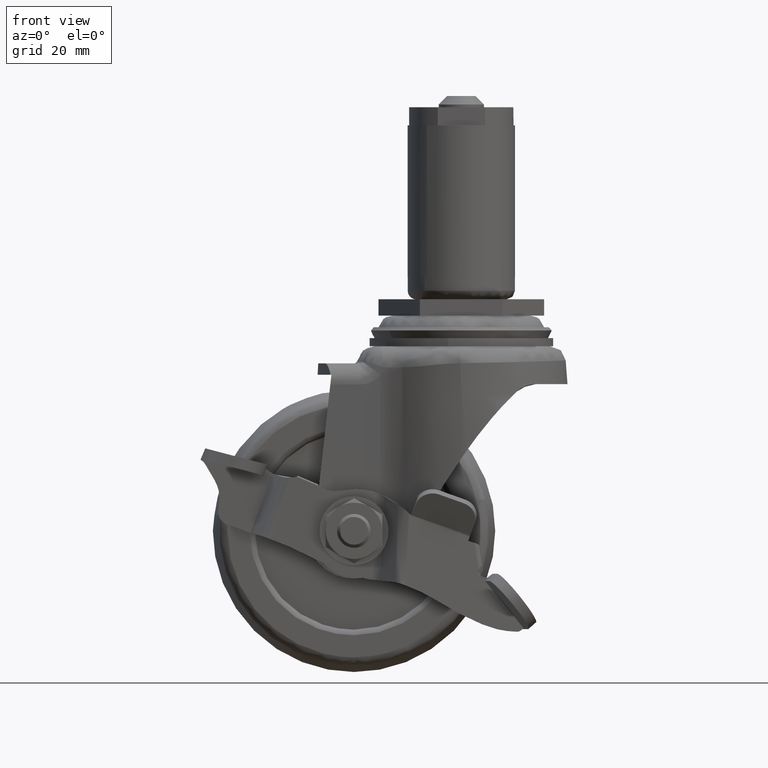
[diagram: clean part render]
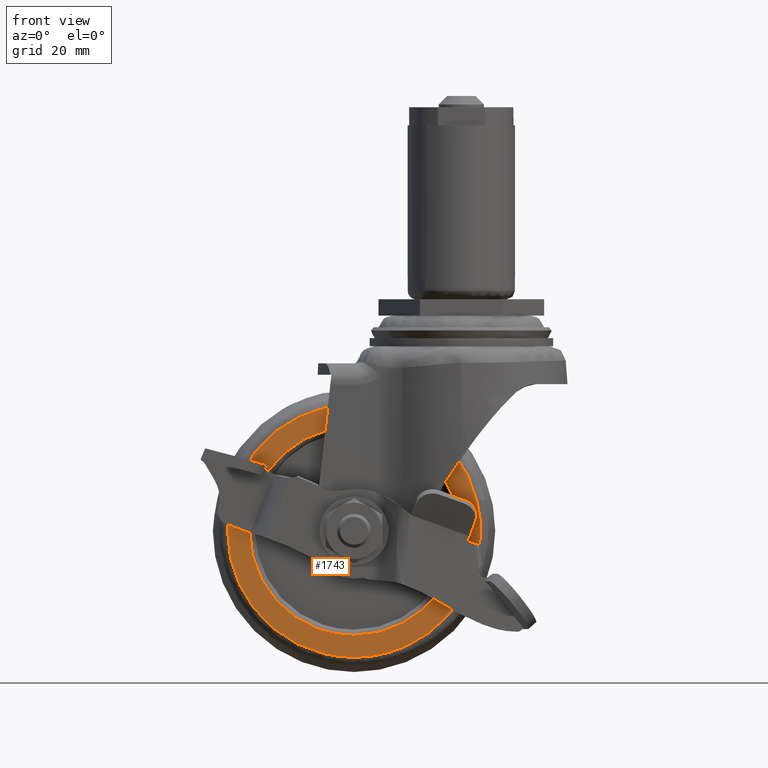
[diagram: same view with one face highlighted and labeled with its STEP entity id]
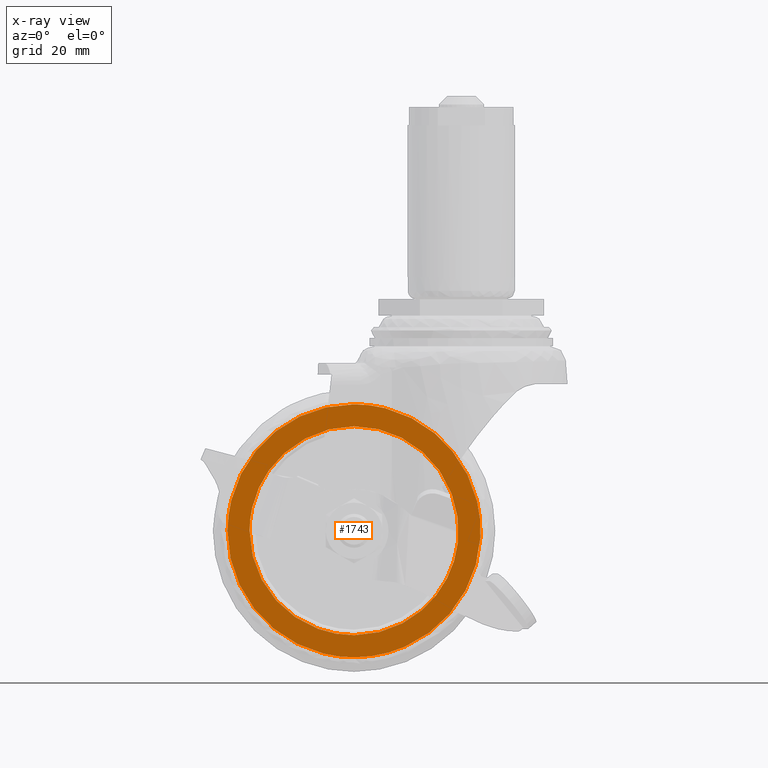
[diagram: x-ray of the same camera — body ghosted, the highlighted face saturated]
A machine part, front view. The second image highlights one B-rep face of the part: STEP entity #1743.
The next image is the same camera in x-ray: the body ghosted, the highlighted face saturated — about 0% of this face is hidden behind the body in this view.
In plain terms, the highlighted face is a freeform B-spline surface patch.
Its self-contained STEP definition (entity closure, byte-faithful):
#717=CARTESIAN_POINT('',(-0.623932356935121,-10.000099000000040,-43.136486265343329));
#718=VERTEX_POINT('',#717);
#729=CARTESIAN_POINT('',(-19.0,-10.000099000000080,-22.500620000000200));
#730=VERTEX_POINT('',#729);
#731=CARTESIAN_POINT('',(-0.623932356935121,-10.000099000000040,-43.136486265343329));
#732=CARTESIAN_POINT('',(-0.473625967720490,-10.000099000000050,-41.845184912027463));
#733=CARTESIAN_POINT('',(-0.451205850647510,-10.000099000000070,-39.639340943658247));
#734=CARTESIAN_POINT('',(-0.953977491376934,-10.000099000000050,-36.667383223980707));
#735=CARTESIAN_POINT('',(-1.836686077629021,-10.000099000000059,-33.872026697312897));
#736=CARTESIAN_POINT('',(-3.132398899456623,-10.000099000000050,-31.324981564832498));
#737=CARTESIAN_POINT('',(-4.703004672492043,-10.000099000000111,-29.195055202131300));
#738=CARTESIAN_POINT('',(-6.561650105880212,-10.000099000000001,-27.201979014527900));
#739=CARTESIAN_POINT('',(-8.714832284515003,-10.000099000000329,-25.512352672260700));
#740=CARTESIAN_POINT('',(-11.654089057477840,-10.000099000000400,-23.929059768822640));
#741=CARTESIAN_POINT('',(-14.937584381427801,-10.000098999999720,-22.806577538904079));
#742=CARTESIAN_POINT('',(-17.578090413905489,-10.000099000000279,-22.500348317698919));
#743=CARTESIAN_POINT('',(-19.0,-10.000099000000080,-22.500620000000200));
#744=B_SPLINE_CURVE_WITH_KNOTS('',3,(#731,#732,#733,#734,#735,#736,#737,#738,#739,#740,#741,#742,#743),.UNSPECIFIED.,.F.,.U.,(4,1,1,1,1,1,1,1,1,1,4),(0.000000127039048,3.900016594334417,6.581317058058673,9.018852017645038,12.675157377979760,15.112698776897560,16.940782202150469,20.840814428644389,23.278360680402159,26.934655014216421,31.200316178846890),.UNSPECIFIED.);
#745=EDGE_CURVE('',#718,#730,#744,.T.);
#747=CARTESIAN_POINT('',(-37.499800975563957,-10.000099000000040,-41.000421000000102));
#748=VERTEX_POINT('',#747);
#749=CARTESIAN_POINT('',(-19.0,-10.000099000000080,-22.500620000000200));
#750=CARTESIAN_POINT('',(-20.286487089412610,-10.000099000000080,-22.500455033797770));
#751=CARTESIAN_POINT('',(-22.935113350953412,-10.000099000000080,-22.777883221564728));
#752=CARTESIAN_POINT('',(-26.332972275275971,-10.000099000000120,-23.900370759428569));
#753=CARTESIAN_POINT('',(-28.859015571871002,-10.000099000000050,-25.290979374627039));
#754=CARTESIAN_POINT('',(-30.946848484947669,-10.000099000000070,-26.799975466509188));
#755=CARTESIAN_POINT('',(-32.817181444237129,-10.000099000000070,-28.580680965316059));
#756=CARTESIAN_POINT('',(-34.747001691415591,-10.000099000000050,-31.116995190415320));
#757=CARTESIAN_POINT('',(-36.077745265764072,-10.000099000000070,-33.681853347634330));
#758=CARTESIAN_POINT('',(-37.195533027599602,-10.000099000000040,-37.065526854941552));
#759=CARTESIAN_POINT('',(-37.500296715781808,-10.000099000000059,-39.411167339179592));
#760=CARTESIAN_POINT('',(-37.499800975563957,-10.000099000000040,-41.000421000000102));
#761=B_SPLINE_CURVE_WITH_KNOTS('',3,(#749,#750,#751,#752,#753,#754,#755,#756,#757,#758,#759,#760),.UNSPECIFIED.,.F.,.U.,(4,1,1,1,1,1,1,1,1,4),(-0.000002103098453,3.859473635764001,7.945986541703654,10.670342082961721,12.486573953543081,15.664919835630030,18.389261352210969,22.021728511979109,24.292020391923629,29.059600697694069),.UNSPECIFIED.);
#762=EDGE_CURVE('',#730,#748,#761,.T.);
#850=CARTESIAN_POINT('',(-19.0,-10.000099000000080,-59.500222000000001));
#851=VERTEX_POINT('',#850);
#852=CARTESIAN_POINT('',(-37.499800975563957,-10.000099000000040,-41.000421000000102));
#853=CARTESIAN_POINT('',(-37.499859818732098,-10.000099000000059,-41.984203420057440));
#854=CARTESIAN_POINT('',(-37.348522895525882,-10.000099000000020,-43.876065749596087));
#855=CARTESIAN_POINT('',(-36.594785290363923,-10.000099000000059,-47.050738967139559));
#856=CARTESIAN_POINT('',(-35.360705307941473,-10.000099000000040,-49.834988608092743));
#857=CARTESIAN_POINT('',(-33.844009914569980,-10.000099000000191,-52.104316959599537));
#858=CARTESIAN_POINT('',(-32.380635131884510,-10.000098999999960,-53.843564472761848));
#859=CARTESIAN_POINT('',(-30.490474792422891,-10.000099000000120,-55.599515272653903));
#860=CARTESIAN_POINT('',(-27.838033178446640,-10.000098999999921,-57.371953336615007));
#861=CARTESIAN_POINT('',(-25.112294286296539,-10.000099000000100,-58.540318597182853));
#862=CARTESIAN_POINT('',(-22.102631930555422,-10.000099000000150,-59.313784732025937));
#863=CARTESIAN_POINT('',(-20.210816489602990,-10.000099000000009,-59.500372958079431));
#864=CARTESIAN_POINT('',(-19.0,-10.000099000000080,-59.500222000000001));
#865=B_SPLINE_CURVE_WITH_KNOTS('',3,(#852,#853,#854,#855,#856,#857,#858,#859,#860,#861,#862,#863,#864),.UNSPECIFIED.,.F.,.U.,(4,1,1,1,1,1,1,1,1,1,4),(-0.000002103059220,2.951360502227789,5.675701497286454,9.762223225059596,12.032517326834640,13.848732236193630,16.573028803346219,19.751439429609409,23.383902094373671,25.427168768281661,29.059600697693821),.UNSPECIFIED.);
#866=EDGE_CURVE('',#748,#851,#865,.T.);
#868=CARTESIAN_POINT('',(-19.0,-10.000099000000080,-59.500222000000001));
#869=CARTESIAN_POINT('',(-17.387624412746881,-10.000099000000080,-59.500786397299990));
#870=CARTESIAN_POINT('',(-14.794216060202480,-10.000099000000080,-59.158826689923849));
#871=CARTESIAN_POINT('',(-11.347995952116261,-10.000099000000111,-57.935743693947963));
#872=CARTESIAN_POINT('',(-8.947799419801207,-10.000099000000020,-56.606131559274743));
#873=CARTESIAN_POINT('',(-6.876483207180400,-10.000099000000031,-55.038093633841513));
#874=CARTESIAN_POINT('',(-5.267034531030157,-10.000099000000350,-53.468044755259982));
#875=CARTESIAN_POINT('',(-3.648159985261218,-10.000098999999789,-51.436204627286124));
#876=CARTESIAN_POINT('',(-2.223810223220511,-10.000099000000130,-49.009007344620493));
#877=CARTESIAN_POINT('',(-1.133024246114303,-10.000098999999910,-46.111904003661863));
#878=CARTESIAN_POINT('',(-0.737184497366433,-10.000099000000221,-44.111329559838524));
#879=CARTESIAN_POINT('',(-0.623932356935121,-10.000099000000040,-43.136486265343329));
#880=B_SPLINE_CURVE_WITH_KNOTS('',3,(#868,#869,#870,#871,#872,#873,#874,#875,#876,#877,#878,#879),.UNSPECIFIED.,.F.,.U.,(4,1,1,1,1,1,1,1,1,4),(0.000000035726465,4.836945590582868,7.781203698962333,10.935770215926279,13.038770960113160,15.562344718528770,17.665400633711190,20.819954531322381,23.974515162277520,26.918724086692858),.UNSPECIFIED.);
#881=EDGE_CURVE('',#851,#718,#880,.T.);
#904=CARTESIAN_POINT('',(-9.983512796648736,-10.000099000000040,-61.509660136653522));
#905=VERTEX_POINT('',#904);
#906=CARTESIAN_POINT('',(2.768149373497545,-10.000099000000031,-35.701967559477751));
#907=VERTEX_POINT('',#906);
#908=CARTESIAN_POINT('',(-9.983512796648736,-10.000099000000040,-61.509660136653522));
#909=CARTESIAN_POINT('',(-8.492867647836357,-10.000099000000059,-60.854636782653031));
#910=CARTESIAN_POINT('',(-6.435917305187584,-10.000099000000031,-59.667622510890212));
#911=CARTESIAN_POINT('',(-3.840182418162388,-10.000099000000089,-57.562880568947342));
#912=CARTESIAN_POINT('',(-1.556379639551520,-10.000099000000020,-55.231786935892281));
#913=CARTESIAN_POINT('',(0.494995280918186,-10.000099000000130,-52.271941314070830));
#914=CARTESIAN_POINT('',(2.065607742356050,-10.000098999999921,-48.861998925691680));
#915=CARTESIAN_POINT('',(3.096925225631080,-10.000099000000480,-45.335594038116547));
#916=CARTESIAN_POINT('',(3.591369378588961,-10.000098999999720,-40.863745915052043));
#917=CARTESIAN_POINT('',(3.211443816426886,-10.000099000000089,-37.521179268112327));
#918=CARTESIAN_POINT('',(2.768149373497545,-10.000099000000031,-35.701967559477751));
#919=B_SPLINE_CURVE_WITH_KNOTS('',3,(#908,#909,#910,#911,#912,#913,#914,#915,#916,#917,#918),.UNSPECIFIED.,.F.,.U.,(4,1,1,1,1,1,1,1,4),(0.000000011241809,4.884570132202171,7.082653421911829,10.013423488194130,14.653780910604199,17.828755640274188,21.247961007739470,25.644122083518539,31.261388723797051),.UNSPECIFIED.);
#920=EDGE_CURVE('',#905,#907,#919,.T.);
#1000=CARTESIAN_POINT('',(-19.0,-10.000099000000080,-63.404124492039401));
#1001=VERTEX_POINT('',#1000);
#1002=CARTESIAN_POINT('',(-19.0,-10.000099000000080,-63.404124492039401));
#1003=CARTESIAN_POINT('',(-17.550056186809190,-10.000099000000059,-63.404280127261721));
#1004=CARTESIAN_POINT('',(-14.456948527587061,-10.000099000000141,-63.102770023646251));
#1005=CARTESIAN_POINT('',(-11.487705536787031,-10.000099000000020,-62.171290814277043));
#1006=CARTESIAN_POINT('',(-9.983512796648736,-10.000099000000040,-61.509660136653522));
#1007=B_SPLINE_CURVE_WITH_KNOTS('',3,(#1002,#1003,#1004,#1005,#1006),.UNSPECIFIED.,.F.,.U.,(4,1,4),(7.319965E-009,4.349807000829228,9.279569039155897),.UNSPECIFIED.);
#1008=EDGE_CURVE('',#1001,#905,#1007,.T.);
#1010=CARTESIAN_POINT('',(-41.403703492039263,-10.000099000000080,-41.000422237602727));
#1011=VERTEX_POINT('',#1010);
#1012=CARTESIAN_POINT('',(-41.403703492039263,-10.000099000000080,-41.000422237602727));
#1013=CARTESIAN_POINT('',(-41.403846926098112,-10.000099000000080,-42.420927829939380));
#1014=CARTESIAN_POINT('',(-41.154463709605537,-10.000099000000111,-45.032739659369987));
#1015=CARTESIAN_POINT('',(-40.161342621958383,-10.000099000000050,-48.621314830072272));
#1016=CARTESIAN_POINT('',(-38.575786541258353,-10.000099000000100,-52.140171261851727));
#1017=CARTESIAN_POINT('',(-36.386437029594283,-10.000099000000089,-55.331392447698292));
#1018=CARTESIAN_POINT('',(-33.785887266402490,-10.000099000000070,-57.931599732759167));
#1019=CARTESIAN_POINT('',(-31.436722354256950,-10.000099000000080,-59.696276723104347));
#1020=CARTESIAN_POINT('',(-29.097370223072961,-10.000099000000080,-61.059678402522913));
#1021=CARTESIAN_POINT('',(-26.231346678625361,-10.000099000000089,-62.298852375052178));
#1022=CARTESIAN_POINT('',(-22.803240909592109,-10.000099000000080,-63.191043622969318));
#1023=CARTESIAN_POINT('',(-20.237203626819849,-10.000099000000080,-63.404217520361343));
#1024=CARTESIAN_POINT('',(-19.0,-10.000099000000080,-63.404124492039401));
#1025=B_SPLINE_CURVE_WITH_KNOTS('',3,(#1012,#1013,#1014,#1015,#1016,#1017,#1018,#1019,#1020,#1021,#1022,#1023,#1024),.UNSPECIFIED.,.F.,.U.,(4,1,1,1,1,1,1,1,1,1,4),(0.000000101872097,4.261489500074262,7.835647964956984,11.134894479324650,15.808826176388290,19.382885958286469,22.132252931936840,24.606690034465959,27.493526738162711,31.480104568105421,35.191709659859107),.UNSPECIFIED.);
#1026=EDGE_CURVE('',#1011,#1001,#1025,.T.);
#1028=CARTESIAN_POINT('',(-19.0,-10.000099000000080,-18.596717507960800));
#1029=VERTEX_POINT('',#1028);
#1030=CARTESIAN_POINT('',(-19.0,-10.000099000000080,-18.596717507960800));
#1031=CARTESIAN_POINT('',(-20.420506612648062,-10.000099000000070,-18.596564556759290));
#1032=CARTESIAN_POINT('',(-23.032317231724520,-10.000099000000111,-18.845968818731301));
#1033=CARTESIAN_POINT('',(-26.620901128653578,-10.000099000000059,-19.839062737931862));
#1034=CARTESIAN_POINT('',(-29.846457811027129,-10.000099000000089,-21.292588748821519));
#1035=CARTESIAN_POINT('',(-32.423552989099392,-10.000099000000120,-22.980494427025992));
#1036=CARTESIAN_POINT('',(-34.820539878671710,-10.000099000000009,-25.048154233977339));
#1037=CARTESIAN_POINT('',(-37.058828613948272,-10.000099000000089,-27.548280246576709));
#1038=CARTESIAN_POINT('',(-39.243003580579298,-10.000099000000301,-31.068418593416290));
#1039=CARTESIAN_POINT('',(-40.958047238545987,-10.000098999999819,-35.639446668516960));
#1040=CARTESIAN_POINT('',(-41.404261662848597,-10.000099000000370,-39.075833058482253));
#1041=CARTESIAN_POINT('',(-41.403703492039263,-10.000099000000080,-41.000422237602727));
#1042=B_SPLINE_CURVE_WITH_KNOTS('',3,(#1030,#1031,#1032,#1033,#1034,#1035,#1036,#1037,#1038,#1039,#1040,#1041),.UNSPECIFIED.,.F.,.U.,(4,1,1,1,1,1,1,1,1,4),(0.000000101662351,4.261489668948073,7.835648275412769,11.134894920594281,14.846544573661889,17.046034516797089,20.620101626972762,24.881627510594750,29.418094414460139,35.191711054928227),.UNSPECIFIED.);
#1043=EDGE_CURVE('',#1029,#1011,#1042,.T.);
#1045=CARTESIAN_POINT('',(2.768149373497545,-10.000099000000031,-35.701967559477751));
#1046=CARTESIAN_POINT('',(2.345852489082182,-10.000099000000050,-33.965079580628768));
#1047=CARTESIAN_POINT('',(1.356641858348208,-10.000099000000050,-31.326672874608679));
#1048=CARTESIAN_POINT('',(-0.705431185392307,-10.000099000000031,-27.931210167488839));
#1049=CARTESIAN_POINT('',(-2.793055639295405,-10.000099000000150,-25.409154327500691));
#1050=CARTESIAN_POINT('',(-5.467733360097811,-10.000099000000050,-23.022958163215321));
#1051=CARTESIAN_POINT('',(-8.494678057570766,-10.000098999999951,-21.094835193466199));
#1052=CARTESIAN_POINT('',(-12.011882472165700,-10.000099000000191,-19.605125387971949));
#1053=CARTESIAN_POINT('',(-15.502828790132170,-10.000099000000031,-18.772474582626039));
#1054=CARTESIAN_POINT('',(-17.912001271547339,-10.000099000000100,-18.596678236557391));
#1055=CARTESIAN_POINT('',(-19.0,-10.000099000000080,-18.596717507960800));
#1056=B_SPLINE_CURVE_WITH_KNOTS('',3,(#1045,#1046,#1047,#1048,#1049,#1050,#1051,#1052,#1053,#1054,#1055),.UNSPECIFIED.,.F.,.U.,(4,1,1,1,1,1,1,1,4),(0.000000029406447,5.362336618396157,8.393254727632385,11.890464908831540,15.154465294891210,19.117950028842600,22.615139835644381,26.578640691451898,29.842658272346551),.UNSPECIFIED.);
#1057=EDGE_CURVE('',#907,#1029,#1056,.T.);
#1725=CARTESIAN_POINT('',(-43.641812287533213,-10.000099000000080,-65.642255225288451));
#1726=CARTESIAN_POINT('',(-43.641812287533213,-10.000099000000080,-16.358586374102330));
#1727=CARTESIAN_POINT('',(5.641426414121876,-10.000099000000080,-65.642255225288451));
#1728=CARTESIAN_POINT('',(5.641426414121876,-10.000099000000080,-16.358586374102330));
#1729=B_SPLINE_SURFACE_WITH_KNOTS('',1,1,((#1725,#1727),(#1726,#1728)),.UNSPECIFIED.,.F.,.F.,.U.,(2,2),(2,2),(0.0,49.283668851186121),(0.0,49.283238701655080),.UNSPECIFIED.);
#1730=ORIENTED_EDGE('',*,*,#1008,.T.);
#1731=ORIENTED_EDGE('',*,*,#920,.T.);
#1732=ORIENTED_EDGE('',*,*,#1057,.T.);
#1733=ORIENTED_EDGE('',*,*,#1043,.T.);
#1734=ORIENTED_EDGE('',*,*,#1026,.T.);
#1735=EDGE_LOOP('',(#1730,#1731,#1732,#1733,#1734));
#1736=FACE_OUTER_BOUND('',#1735,.T.);
#1737=ORIENTED_EDGE('',*,*,#762,.F.);
#1738=ORIENTED_EDGE('',*,*,#745,.F.);
#1739=ORIENTED_EDGE('',*,*,#881,.F.);
#1740=ORIENTED_EDGE('',*,*,#866,.F.);
#1741=EDGE_LOOP('',(#1737,#1738,#1739,#1740));
#1742=FACE_BOUND('',#1741,.T.);
#1743=ADVANCED_FACE('',(#1736,#1742),#1729,.F.);